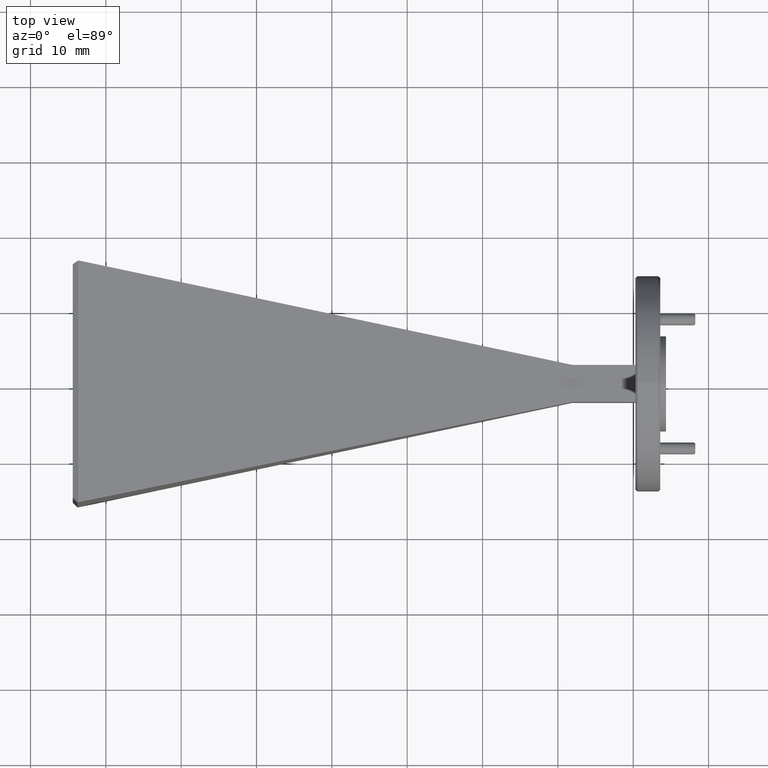
[diagram: clean part render]
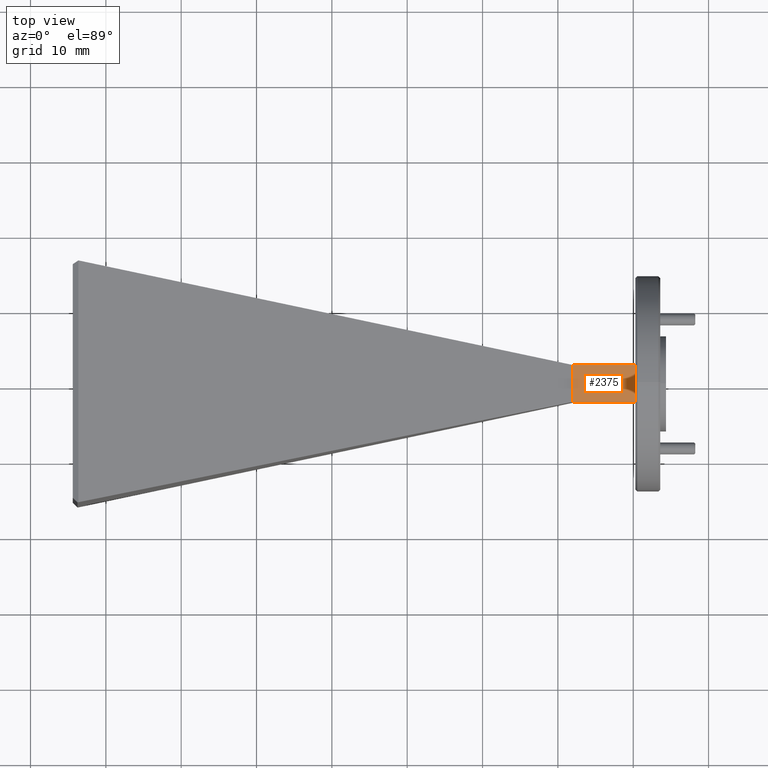
[diagram: same view with one face highlighted and labeled with its STEP entity id]
A machine part, top view. The second image highlights one B-rep face of the part: STEP entity #2375.
In plain terms, the highlighted planar face has unit normal (0, 0, -1).
Its self-contained STEP definition (entity closure, byte-faithful):
#95 = VERTEX_POINT ( 'NONE', #1595 ) ;
#194 = EDGE_CURVE ( 'NONE', #1912, #883, #378, .T. ) ;
#199 = DIRECTION ( 'NONE',  ( 1.000000000000000000, 0.0000000000000000000, -0.0000000000000000000 ) ) ;
#305 = CARTESIAN_POINT ( 'NONE',  ( 2.043564782623166700, 1.683671098379451200, 2.637166721494955500 ) ) ;
#365 = DIRECTION ( 'NONE',  ( -0.0000000000000000000, 1.000000000000000000, 0.0000000000000000000 ) ) ;
#378 = LINE ( 'NONE', #2052, #1231 ) ;
#465 = VECTOR ( 'NONE', #1971, 39.37007874015748100 ) ;
#553 = DIRECTION ( 'NONE',  ( 0.0000000000000000000, 0.0000000000000000000, -1.000000000000000000 ) ) ;
#587 = FACE_OUTER_BOUND ( 'NONE', #892, .T. ) ;
#604 = VERTEX_POINT ( 'NONE', #744 ) ;
#744 = CARTESIAN_POINT ( 'NONE',  ( 2.373564782623161400, 1.683671098379451400, 2.637166721494955500 ) ) ;
#745 = EDGE_CURVE ( 'NONE', #883, #604, #1534, .T. ) ;
#883 = VERTEX_POINT ( 'NONE', #305 ) ;
#892 = EDGE_LOOP ( 'NONE', ( #1506, #1409, #1940, #1645 ) ) ;
#931 = EDGE_CURVE ( 'NONE', #604, #95, #960, .T. ) ;
#960 = LINE ( 'NONE', #1572, #465 ) ;
#1197 = EDGE_CURVE ( 'NONE', #1912, #95, #1923, .T. ) ;
#1214 = AXIS2_PLACEMENT_3D ( 'NONE', #1287, #553, #1843 ) ;
#1231 = VECTOR ( 'NONE', #365, 39.37007874015748100 ) ;
#1287 = CARTESIAN_POINT ( 'NONE',  ( 2.043564782623161300, 1.489671098379451700, 2.637166721494955500 ) ) ;
#1386 = VECTOR ( 'NONE', #199, 39.37007874015748100 ) ;
#1409 = ORIENTED_EDGE ( 'NONE', *, *, #1197, .T. ) ;
#1506 = ORIENTED_EDGE ( 'NONE', *, *, #194, .F. ) ;
#1534 = LINE ( 'NONE', #1915, #2202 ) ;
#1572 = CARTESIAN_POINT ( 'NONE',  ( 2.373564782623161400, 1.489671098379451700, 2.637166721494955500 ) ) ;
#1595 = CARTESIAN_POINT ( 'NONE',  ( 2.373564782623161400, 1.489671098379451900, 2.637166721494955500 ) ) ;
#1635 = CARTESIAN_POINT ( 'NONE',  ( 2.043564782623166700, 1.489671098379451900, 2.637166721494955000 ) ) ;
#1645 = ORIENTED_EDGE ( 'NONE', *, *, #745, .F. ) ;
#1662 = CARTESIAN_POINT ( 'NONE',  ( 2.043564782623161300, 1.489671098379451700, 2.637166721494955000 ) ) ;
#1663 = PLANE ( 'NONE',  #1214 ) ;
#1843 = DIRECTION ( 'NONE',  ( -1.000000000000000000, 0.0000000000000000000, -0.0000000000000000000 ) ) ;
#1912 = VERTEX_POINT ( 'NONE', #1635 ) ;
#1915 = CARTESIAN_POINT ( 'NONE',  ( 2.043564782623161300, 1.683671098379451200, 2.637166721494955500 ) ) ;
#1923 = LINE ( 'NONE', #1662, #1386 ) ;
#1940 = ORIENTED_EDGE ( 'NONE', *, *, #931, .F. ) ;
#1971 = DIRECTION ( 'NONE',  ( -0.0000000000000000000, -1.000000000000000000, -0.0000000000000000000 ) ) ;
#2052 = CARTESIAN_POINT ( 'NONE',  ( 2.043564782623166200, 1.586671098379451600, 2.637166721494953700 ) ) ;
#2101 = DIRECTION ( 'NONE',  ( 1.000000000000000000, -0.0000000000000000000, 0.0000000000000000000 ) ) ;
#2202 = VECTOR ( 'NONE', #2101, 39.37007874015748100 ) ;
#2375 = ADVANCED_FACE ( 'NONE', ( #587 ), #1663, .F. ) ;